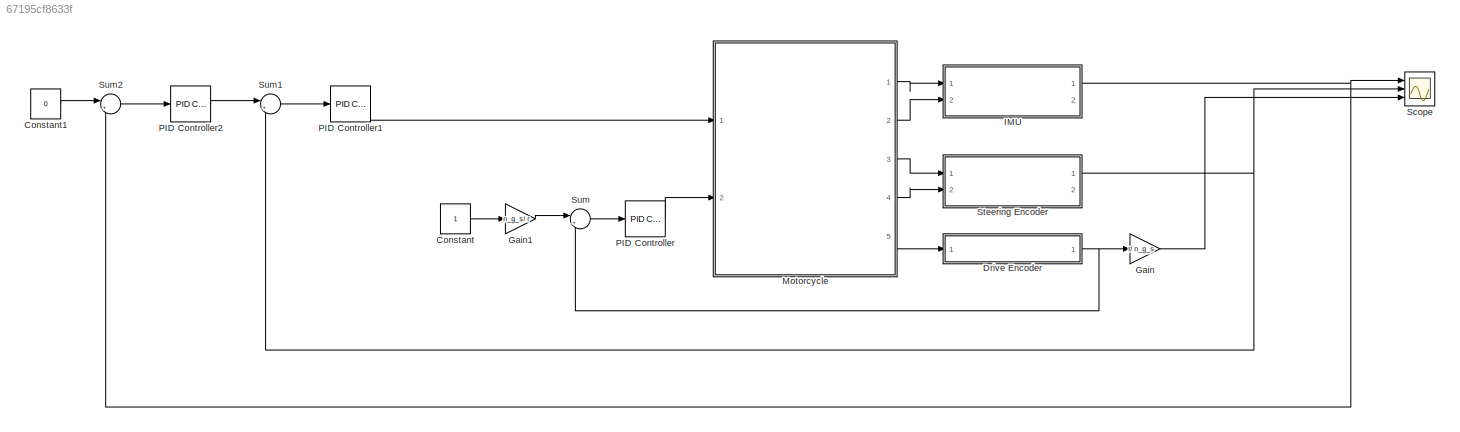
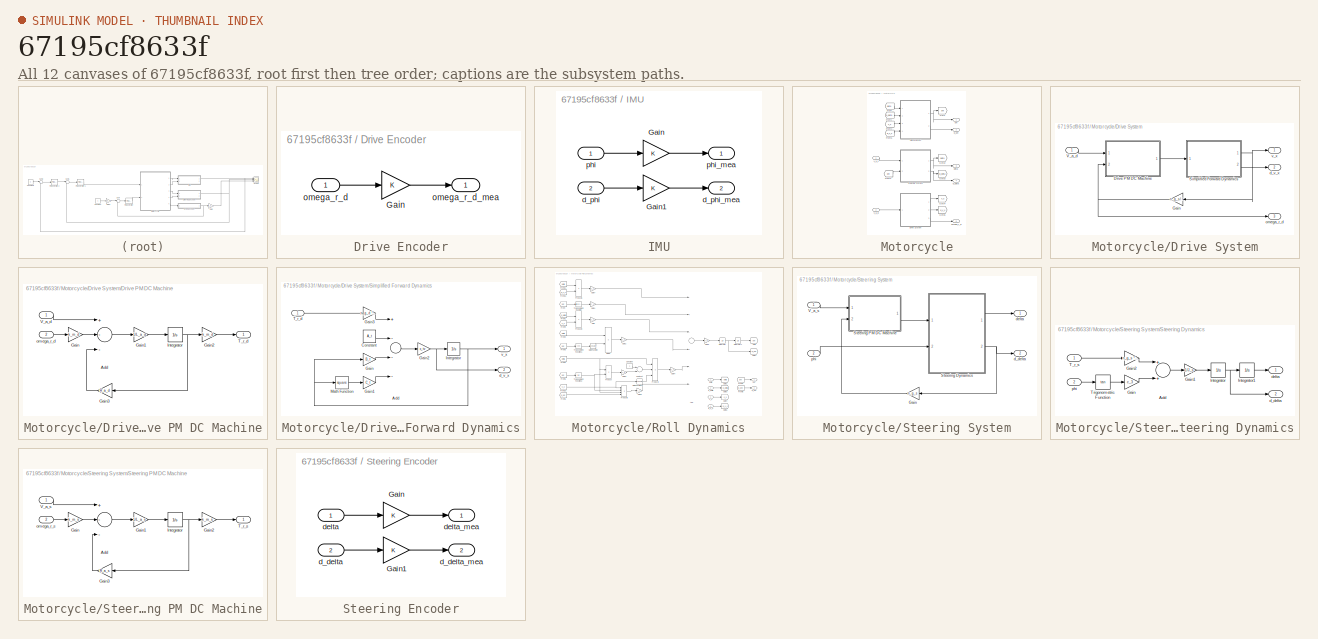
[diagram: thumbnail index - all 12 canvases of the model, root first then tree order]
MODEL slx_67195cf8633f
KIND model
CONFIG AbsTol = auto
CONFIG EnableMultiTasking = off
CONFIG FixedStep = auto
CONFIG MaxStep = auto
CONFIG MinStep = auto
CONFIG RelTol = 1e-3
CONFIG SampleTimeConstraint = Unconstrained
CONFIG Solver = VariableStepAuto
CONFIG SolverName = VariableStepAuto
CONFIG StartTime = 0.0
CONFIG StopTime = 10.0
BLOCK [Constant] Constant
BLOCK [Constant] Constant1
  Value = 0
BLOCK [SubSystem] Drive Encoder
  Ports = [1, 1]
  RequestExecContextInheritance = off
BLOCK [Gain] Drive Encoder/Gain
  OutDataTypeStr = Inherit: Inherit via internal rule
  ParamDataTypeStr = Inherit: Inherit via internal rule
  SaturateOnIntegerOverflow = off
BLOCK [Inport] Drive Encoder/omega_r_d
  IconDisplay = Port number
BLOCK [Outport] Drive Encoder/omega_r_d_mea
  IconDisplay = Port number
  VectorParamsAs1DForOutWhenUnconnected = off
BLOCK [Gain] Gain
  AttributesFormatString = %<Gain>
  Gain = r/ n_g_s
  OutDataTypeStr = Inherit: Inherit via internal rule
  ParamDataTypeStr = Inherit: Inherit via internal rule
  SaturateOnIntegerOverflow = off
BLOCK [Gain] Gain1
  AttributesFormatString = %<Gain>
  Gain = n_g_s/ r
  OutDataTypeStr = Inherit: Inherit via internal rule
  ParamDataTypeStr = Inherit: Inherit via internal rule
  SaturateOnIntegerOverflow = off
BLOCK [SubSystem] IMU
  Ports = [2, 2]
  RequestExecContextInheritance = off
BLOCK [Gain] IMU/Gain
  OutDataTypeStr = Inherit: Inherit via internal rule
  ParamDataTypeStr = Inherit: Inherit via internal rule
  SaturateOnIntegerOverflow = off
BLOCK [Gain] IMU/Gain1
  OutDataTypeStr = Inherit: Inherit via internal rule
  ParamDataTypeStr = Inherit: Inherit via internal rule
  SaturateOnIntegerOverflow = off
BLOCK [Inport] IMU/d_phi
  IconDisplay = Port number
  Port = 2
BLOCK [Outport] IMU/d_phi_mea
  IconDisplay = Port number
  Port = 2
  VectorParamsAs1DForOutWhenUnconnected = off
BLOCK [Inport] IMU/phi
  IconDisplay = Port number
BLOCK [Outport] IMU/phi_mea
  IconDisplay = Port number
  VectorParamsAs1DForOutWhenUnconnected = off
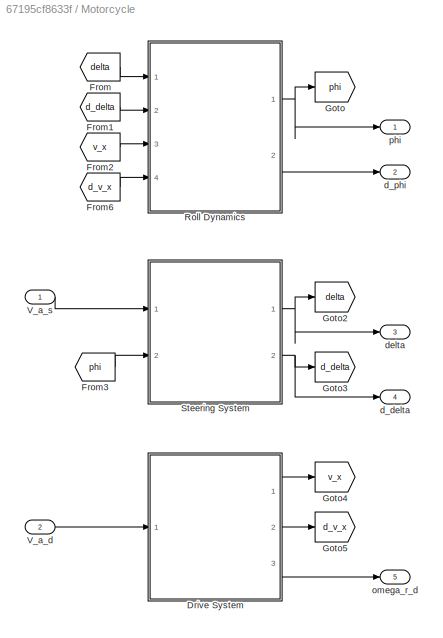
BLOCK [SubSystem] Motorcycle
  Ports = [2, 5]
  RequestExecContextInheritance = off
BLOCK [SubSystem] Motorcycle/Drive System
  Ports = [1, 3]
  RequestExecContextInheritance = off
BLOCK [SubSystem] Motorcycle/Drive System/Drive PM DC Machine
  Ports = [2, 1]
  RequestExecContextInheritance = off
BLOCK [Sum] Motorcycle/Drive System/Drive PM DC Machine/Add
  InputSameDT = off
  Inputs = +--
  OutDataTypeStr = Inherit: Inherit via internal rule
  Ports = [3, 1]
  SaturateOnIntegerOverflow = off
BLOCK [Gain] Motorcycle/Drive System/Drive PM DC Machine/Gain
  AttributesFormatString = %<Gain>
  Gain = k_m_d
  OutDataTypeStr = Inherit: Inherit via internal rule
  ParamDataTypeStr = Inherit: Inherit via internal rule
  SaturateOnIntegerOverflow = off
BLOCK [Gain] Motorcycle/Drive System/Drive PM DC Machine/Gain1
  AttributesFormatString = %<Gain>
  Gain = 1/L_a_d
  OutDataTypeStr = Inherit: Inherit via internal rule
  ParamDataTypeStr = Inherit: Inherit via internal rule
  SaturateOnIntegerOverflow = off
BLOCK [Gain] Motorcycle/Drive System/Drive PM DC Machine/Gain2
  AttributesFormatString = %<Gain>
  Gain = k_m_d
  OutDataTypeStr = Inherit: Inherit via internal rule
  ParamDataTypeStr = Inherit: Inherit via internal rule
  SaturateOnIntegerOverflow = off
BLOCK [Gain] Motorcycle/Drive System/Drive PM DC Machine/Gain3
  AttributesFormatString = %<Gain>
  Gain = R_a_d
  OutDataTypeStr = Inherit: Inherit via internal rule
  ParamDataTypeStr = Inherit: Inherit via internal rule
  SaturateOnIntegerOverflow = off
BLOCK [Integrator] Motorcycle/Drive System/Drive PM DC Machine/Integrator
  Ports = [1, 1]
BLOCK [Outport] Motorcycle/Drive System/Drive PM DC Machine/T_r_d
  IconDisplay = Port number
  VectorParamsAs1DForOutWhenUnconnected = off
BLOCK [Inport] Motorcycle/Drive System/Drive PM DC Machine/V_a_d
  IconDisplay = Port number
BLOCK [Inport] Motorcycle/Drive System/Drive PM DC Machine/omega_r_d
  IconDisplay = Port number
  Port = 2
BLOCK [Gain] Motorcycle/Drive System/Gain
  AttributesFormatString = %<Gain>
  Gain = n_g_s/ r
  OutDataTypeStr = Inherit: Inherit via internal rule
  ParamDataTypeStr = Inherit: Inherit via internal rule
  SaturateOnIntegerOverflow = off
BLOCK [SubSystem] Motorcycle/Drive System/Simplified Forward Dynamics
  Ports = [1, 2]
  RequestExecContextInheritance = off
BLOCK [Sum] Motorcycle/Drive System/Simplified Forward Dynamics/Add
  InputSameDT = off
  Inputs = +---
  OutDataTypeStr = Inherit: Inherit via internal rule
  Ports = [4, 1]
  SaturateOnIntegerOverflow = off
BLOCK [Constant] Motorcycle/Drive System/Simplified Forward Dynamics/Constant
  Value = A_t
BLOCK [Gain] Motorcycle/Drive System/Simplified Forward Dynamics/Gain
  Gain = B_t
  OutDataTypeStr = Inherit: Inherit via internal rule
  ParamDataTypeStr = Inherit: Inherit via internal rule
  SaturateOnIntegerOverflow = off
BLOCK [Gain] Motorcycle/Drive System/Simplified Forward Dynamics/Gain1
  Gain = C_t
  OutDataTypeStr = Inherit: Inherit via internal rule
  ParamDataTypeStr = Inherit: Inherit via internal rule
  SaturateOnIntegerOverflow = off
BLOCK [Gain] Motorcycle/Drive System/Simplified Forward Dynamics/Gain2
  Gain = c_tv
  OutDataTypeStr = Inherit: Inherit via internal rule
  ParamDataTypeStr = Inherit: Inherit via internal rule
  SaturateOnIntegerOverflow = off
BLOCK [Gain] Motorcycle/Drive System/Simplified Forward Dynamics/Gain3
  AttributesFormatString = %<Gain>
  Gain = n_g_d * eta_g_d
  OutDataTypeStr = Inherit: Inherit via internal rule
  ParamDataTypeStr = Inherit: Inherit via internal rule
  SaturateOnIntegerOverflow = off
BLOCK [Integrator] Motorcycle/Drive System/Simplified Forward Dynamics/Integrator
  Ports = [1, 1]
BLOCK [Math] Motorcycle/Drive System/Simplified Forward Dynamics/Math Function
  Operator = square
  Ports = [1, 1]
BLOCK [Inport] Motorcycle/Drive System/Simplified Forward Dynamics/T_r_d
  IconDisplay = Port number
BLOCK [Outport] Motorcycle/Drive System/Simplified Forward Dynamics/d_v_x
  IconDisplay = Port number
  Port = 2
  VectorParamsAs1DForOutWhenUnconnected = off
BLOCK [Outport] Motorcycle/Drive System/Simplified Forward Dynamics/v_x
  IconDisplay = Port number
  VectorParamsAs1DForOutWhenUnconnected = off
BLOCK [Inport] Motorcycle/Drive System/V_a_d
  IconDisplay = Port number
BLOCK [Outport] Motorcycle/Drive System/d_v_x
  IconDisplay = Port number
  Port = 2
  VectorParamsAs1DForOutWhenUnconnected = off
BLOCK [Outport] Motorcycle/Drive System/omega_r_d
  IconDisplay = Port number
  Port = 3
  VectorParamsAs1DForOutWhenUnconnected = off
BLOCK [Outport] Motorcycle/Drive System/v_x
  IconDisplay = Port number
  VectorParamsAs1DForOutWhenUnconnected = off
BLOCK [From] Motorcycle/From
  GotoTag = delta
BLOCK [From] Motorcycle/From1
  GotoTag = d_delta
BLOCK [From] Motorcycle/From2
  GotoTag = v_x
BLOCK [From] Motorcycle/From3
  GotoTag = phi
BLOCK [From] Motorcycle/From6
  GotoTag = d_v_x
BLOCK [Goto] Motorcycle/Goto
  GotoTag = phi
BLOCK [Goto] Motorcycle/Goto2
  GotoTag = delta
BLOCK [Goto] Motorcycle/Goto3
  GotoTag = d_delta
BLOCK [Goto] Motorcycle/Goto4
  GotoTag = v_x
BLOCK [Goto] Motorcycle/Goto5
  GotoTag = d_v_x
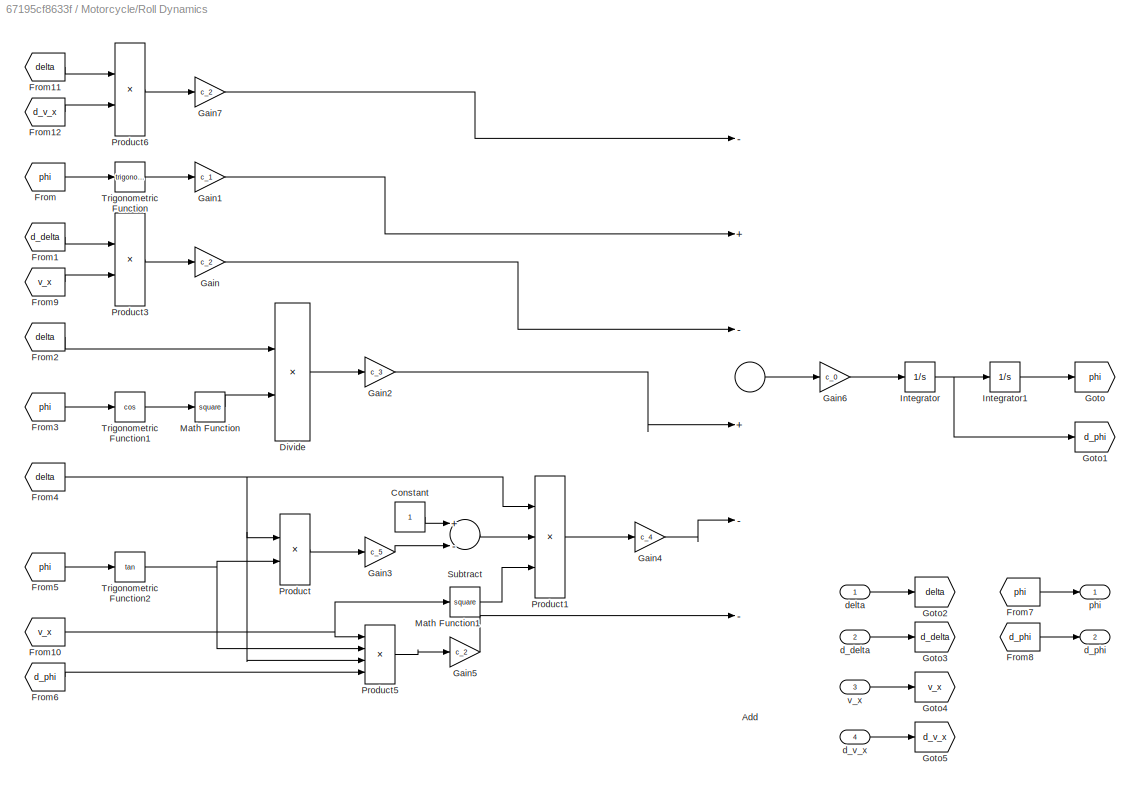
BLOCK [SubSystem] Motorcycle/Roll Dynamics
  Ports = [4, 2]
  RequestExecContextInheritance = off
BLOCK [Sum] Motorcycle/Roll Dynamics/Add
  InputSameDT = off
  Inputs = -+-+--
  OutDataTypeStr = Inherit: Inherit via internal rule
  Ports = [6, 1]
  SaturateOnIntegerOverflow = off
BLOCK [Constant] Motorcycle/Roll Dynamics/Constant
BLOCK [Product] Motorcycle/Roll Dynamics/Divide
  InputSameDT = off
  Inputs = */
  OutDataTypeStr = Inherit: Inherit via internal rule
  Ports = [2, 1]
  RndMeth = Floor
  SaturateOnIntegerOverflow = off
BLOCK [From] Motorcycle/Roll Dynamics/From
  GotoTag = phi
BLOCK [From] Motorcycle/Roll Dynamics/From1
  GotoTag = d_delta
BLOCK [From] Motorcycle/Roll Dynamics/From10
  GotoTag = v_x
BLOCK [From] Motorcycle/Roll Dynamics/From11
  GotoTag = delta
BLOCK [From] Motorcycle/Roll Dynamics/From12
  GotoTag = d_v_x
BLOCK [From] Motorcycle/Roll Dynamics/From2
  GotoTag = delta
BLOCK [From] Motorcycle/Roll Dynamics/From3
  GotoTag = phi
BLOCK [From] Motorcycle/Roll Dynamics/From4
  GotoTag = delta
BLOCK [From] Motorcycle/Roll Dynamics/From5
  GotoTag = phi
BLOCK [From] Motorcycle/Roll Dynamics/From6
  GotoTag = d_phi
BLOCK [From] Motorcycle/Roll Dynamics/From7
  GotoTag = phi
BLOCK [From] Motorcycle/Roll Dynamics/From8
  GotoTag = d_phi
BLOCK [From] Motorcycle/Roll Dynamics/From9
  GotoTag = v_x
BLOCK [Gain] Motorcycle/Roll Dynamics/Gain
  Gain = c_2
  OutDataTypeStr = Inherit: Inherit via internal rule
  ParamDataTypeStr = Inherit: Inherit via internal rule
  SaturateOnIntegerOverflow = off
BLOCK [Gain] Motorcycle/Roll Dynamics/Gain1
  Gain = c_1
  OutDataTypeStr = Inherit: Inherit via internal rule
  ParamDataTypeStr = Inherit: Inherit via internal rule
  SaturateOnIntegerOverflow = off
BLOCK [Gain] Motorcycle/Roll Dynamics/Gain2
  Gain = c_3
  OutDataTypeStr = Inherit: Inherit via internal rule
  ParamDataTypeStr = Inherit: Inherit via internal rule
  SaturateOnIntegerOverflow = off
BLOCK [Gain] Motorcycle/Roll Dynamics/Gain3
  Gain = c_5
  OutDataTypeStr = Inherit: Inherit via internal rule
  ParamDataTypeStr = Inherit: Inherit via internal rule
  SaturateOnIntegerOverflow = off
BLOCK [Gain] Motorcycle/Roll Dynamics/Gain4
  Gain = c_4
  OutDataTypeStr = Inherit: Inherit via internal rule
  ParamDataTypeStr = Inherit: Inherit via internal rule
  SaturateOnIntegerOverflow = off
BLOCK [Gain] Motorcycle/Roll Dynamics/Gain5
  Gain = c_2
  OutDataTypeStr = Inherit: Inherit via internal rule
  ParamDataTypeStr = Inherit: Inherit via internal rule
  SaturateOnIntegerOverflow = off
BLOCK [Gain] Motorcycle/Roll Dynamics/Gain6
  Gain = c_0
  OutDataTypeStr = Inherit: Inherit via internal rule
  ParamDataTypeStr = Inherit: Inherit via internal rule
  SaturateOnIntegerOverflow = off
BLOCK [Gain] Motorcycle/Roll Dynamics/Gain7
  Gain = c_2
  OutDataTypeStr = Inherit: Inherit via internal rule
  ParamDataTypeStr = Inherit: Inherit via internal rule
  SaturateOnIntegerOverflow = off
BLOCK [Goto] Motorcycle/Roll Dynamics/Goto
  GotoTag = phi
BLOCK [Goto] Motorcycle/Roll Dynamics/Goto1
  GotoTag = d_phi
BLOCK [Goto] Motorcycle/Roll Dynamics/Goto2
  GotoTag = delta
BLOCK [Goto] Motorcycle/Roll Dynamics/Goto3
  GotoTag = d_delta
BLOCK [Goto] Motorcycle/Roll Dynamics/Goto4
  GotoTag = v_x
BLOCK [Goto] Motorcycle/Roll Dynamics/Goto5
  GotoTag = d_v_x
BLOCK [Integrator] Motorcycle/Roll Dynamics/Integrator
  Ports = [1, 1]
BLOCK [Integrator] Motorcycle/Roll Dynamics/Integrator1
  InitialCondition = phi_0
  Ports = [1, 1]
BLOCK [Math] Motorcycle/Roll Dynamics/Math Function
  Operator = square
  Ports = [1, 1]
BLOCK [Math] Motorcycle/Roll Dynamics/Math Function1
  Operator = square
  Ports = [1, 1]
BLOCK [Product] Motorcycle/Roll Dynamics/Product
  InputSameDT = off
  OutDataTypeStr = Inherit: Inherit via internal rule
  Ports = [2, 1]
  RndMeth = Floor
  SaturateOnIntegerOverflow = off
BLOCK [Product] Motorcycle/Roll Dynamics/Product1
  InputSameDT = off
  Inputs = 3
  OutDataTypeStr = Inherit: Inherit via internal rule
  Ports = [3, 1]
  RndMeth = Floor
  SaturateOnIntegerOverflow = off
BLOCK [Product] Motorcycle/Roll Dynamics/Product3
  InputSameDT = off
  OutDataTypeStr = Inherit: Inherit via internal rule
  Ports = [2, 1]
  RndMeth = Floor
  SaturateOnIntegerOverflow = off
BLOCK [Product] Motorcycle/Roll Dynamics/Product5
  InputSameDT = off
  Inputs = 4
  OutDataTypeStr = Inherit: Inherit via internal rule
  Ports = [4, 1]
  RndMeth = Floor
  SaturateOnIntegerOverflow = off
BLOCK [Product] Motorcycle/Roll Dynamics/Product6
  InputSameDT = off
  OutDataTypeStr = Inherit: Inherit via internal rule
  Ports = [2, 1]
  RndMeth = Floor
  SaturateOnIntegerOverflow = off
BLOCK [Sum] Motorcycle/Roll Dynamics/Subtract
  InputSameDT = off
  Inputs = +-
  OutDataTypeStr = Inherit: Inherit via internal rule
  Ports = [2, 1]
  SaturateOnIntegerOverflow = off
BLOCK [Trigonometry] Motorcycle/Roll Dynamics/Trigonometric Function
  Ports = [1, 1]
BLOCK [Trigonometry] Motorcycle/Roll Dynamics/Trigonometric Function1
  Operator = cos
  Ports = [1, 1]
BLOCK [Trigonometry] Motorcycle/Roll Dynamics/Trigonometric Function2
  Operator = tan
  Ports = [1, 1]
BLOCK [Inport] Motorcycle/Roll Dynamics/d_delta
  IconDisplay = Port number
  Port = 2
BLOCK [Outport] Motorcycle/Roll Dynamics/d_phi
  IconDisplay = Port number
  Port = 2
  VectorParamsAs1DForOutWhenUnconnected = off
BLOCK [Inport] Motorcycle/Roll Dynamics/d_v_x
  IconDisplay = Port number
  Port = 4
BLOCK [Inport] Motorcycle/Roll Dynamics/delta
  IconDisplay = Port number
BLOCK [Outport] Motorcycle/Roll Dynamics/phi
  IconDisplay = Port number
  VectorParamsAs1DForOutWhenUnconnected = off
BLOCK [Inport] Motorcycle/Roll Dynamics/v_x
  IconDisplay = Port number
  Port = 3
BLOCK [SubSystem] Motorcycle/Steering System
  Ports = [2, 2]
  RequestExecContextInheritance = off
BLOCK [Gain] Motorcycle/Steering System/Gain
  AttributesFormatString = %<Gain>
  Gain = n_g_s
  OutDataTypeStr = Inherit: Inherit via internal rule
  ParamDataTypeStr = Inherit: Inherit via internal rule
  SaturateOnIntegerOverflow = off
BLOCK [SubSystem] Motorcycle/Steering System/Steering Dynamics
  Ports = [2, 2]
  RequestExecContextInheritance = off
BLOCK [Sum] Motorcycle/Steering System/Steering Dynamics/Add
  InputSameDT = off
  OutDataTypeStr = Inherit: Inherit via internal rule
  Ports = [2, 1]
  SaturateOnIntegerOverflow = off
BLOCK [Gain] Motorcycle/Steering System/Steering Dynamics/Gain
  Gain = c_3
  OutDataTypeStr = Inherit: Inherit via internal rule
  ParamDataTypeStr = Inherit: Inherit via internal rule
  SaturateOnIntegerOverflow = off
BLOCK [Gain] Motorcycle/Steering System/Steering Dynamics/Gain1
  AttributesFormatString = %<Gain>
  Gain = 1/J_s
  OutDataTypeStr = Inherit: Inherit via internal rule
  ParamDataTypeStr = Inherit: Inherit via internal rule
  SaturateOnIntegerOverflow = off
BLOCK [Gain] Motorcycle/Steering System/Steering Dynamics/Gain2
  AttributesFormatString = %<Gain>
  Gain = n_g_s * eta_g_s
  OutDataTypeStr = Inherit: Inherit via internal rule
  ParamDataTypeStr = Inherit: Inherit via internal rule
  SaturateOnIntegerOverflow = off
BLOCK [Integrator] Motorcycle/Steering System/Steering Dynamics/Integrator
  Ports = [1, 1]
BLOCK [Integrator] Motorcycle/Steering System/Steering Dynamics/Integrator1
  Ports = [1, 1]
BLOCK [Inport] Motorcycle/Steering System/Steering Dynamics/T_r_s
  IconDisplay = Port number
BLOCK [Trigonometry] Motorcycle/Steering System/Steering Dynamics/Trigonometric Function
  Operator = tan
  Ports = [1, 1]
BLOCK [Outport] Motorcycle/Steering System/Steering Dynamics/d_delta
  IconDisplay = Port number
  Port = 2
  VectorParamsAs1DForOutWhenUnconnected = off
BLOCK [Outport] Motorcycle/Steering System/Steering Dynamics/delta
  IconDisplay = Port number
  VectorParamsAs1DForOutWhenUnconnected = off
BLOCK [Inport] Motorcycle/Steering System/Steering Dynamics/phi
  IconDisplay = Port number
  Port = 2
BLOCK [SubSystem] Motorcycle/Steering System/Steering PM DC Machine
  Ports = [2, 1]
  RequestExecContextInheritance = off
BLOCK [Sum] Motorcycle/Steering System/Steering PM DC Machine/Add
  InputSameDT = off
  Inputs = +--
  OutDataTypeStr = Inherit: Inherit via internal rule
  Ports = [3, 1]
  SaturateOnIntegerOverflow = off
BLOCK [Gain] Motorcycle/Steering System/Steering PM DC Machine/Gain
  AttributesFormatString = %<Gain>
  Gain = k_m_s
  OutDataTypeStr = Inherit: Inherit via internal rule
  ParamDataTypeStr = Inherit: Inherit via internal rule
  SaturateOnIntegerOverflow = off
BLOCK [Gain] Motorcycle/Steering System/Steering PM DC Machine/Gain1
  AttributesFormatString = %<Gain>
  Gain = 1/L_a_s
  OutDataTypeStr = Inherit: Inherit via internal rule
  ParamDataTypeStr = Inherit: Inherit via internal rule
  SaturateOnIntegerOverflow = off
BLOCK [Gain] Motorcycle/Steering System/Steering PM DC Machine/Gain2
  AttributesFormatString = %<Gain>
  Gain = k_m_s
  OutDataTypeStr = Inherit: Inherit via internal rule
  ParamDataTypeStr = Inherit: Inherit via internal rule
  SaturateOnIntegerOverflow = off
BLOCK [Gain] Motorcycle/Steering System/Steering PM DC Machine/Gain3
  AttributesFormatString = %<Gain>
  Gain = R_a_s
  OutDataTypeStr = Inherit: Inherit via internal rule
  ParamDataTypeStr = Inherit: Inherit via internal rule
  SaturateOnIntegerOverflow = off
BLOCK [Integrator] Motorcycle/Steering System/Steering PM DC Machine/Integrator
  Ports = [1, 1]
BLOCK [Outport] Motorcycle/Steering System/Steering PM DC Machine/T_r_s
  IconDisplay = Port number
  VectorParamsAs1DForOutWhenUnconnected = off
BLOCK [Inport] Motorcycle/Steering System/Steering PM DC Machine/V_a_s
  IconDisplay = Port number
BLOCK [Inport] Motorcycle/Steering System/Steering PM DC Machine/omega_r_s
  IconDisplay = Port number
  Port = 2
BLOCK [Inport] Motorcycle/Steering System/V_a_s
  IconDisplay = Port number
BLOCK [Outport] Motorcycle/Steering System/d_delta
  IconDisplay = Port number
  Port = 2
  VectorParamsAs1DForOutWhenUnconnected = off
BLOCK [Outport] Motorcycle/Steering System/delta
  IconDisplay = Port number
  VectorParamsAs1DForOutWhenUnconnected = off
BLOCK [Inport] Motorcycle/Steering System/phi
  IconDisplay = Port number
  Port = 2
BLOCK [Inport] Motorcycle/V_a_d
  IconDisplay = Port number
  Port = 2
BLOCK [Inport] Motorcycle/V_a_s
  IconDisplay = Port number
BLOCK [Outport] Motorcycle/d_delta
  IconDisplay = Port number
  Port = 4
  VectorParamsAs1DForOutWhenUnconnected = off
BLOCK [Outport] Motorcycle/d_phi
  IconDisplay = Port number
  Port = 2
  VectorParamsAs1DForOutWhenUnconnected = off
BLOCK [Outport] Motorcycle/delta
  IconDisplay = Port number
  Port = 3
  VectorParamsAs1DForOutWhenUnconnected = off
BLOCK [Outport] Motorcycle/omega_r_d
  IconDisplay = Port number
  Port = 5
  VectorParamsAs1DForOutWhenUnconnected = off
BLOCK [Outport] Motorcycle/phi
  IconDisplay = Port number
  VectorParamsAs1DForOutWhenUnconnected = off
BLOCK [Reference] PID Controller  REF=simulink/Continuous/PID Controller
  Ports = [1, 1]
  SourceBlock = simulink/Continuous/PID Controller
  SourceProductBaseCode = SL
  SourceProductName = Simulink
  SourceType = PID 1dof
BLOCK [Reference] PID Controller1  REF=simulink/Continuous/PID Controller
  Ports = [1, 1]
  SourceBlock = simulink/Continuous/PID Controller
  SourceProductBaseCode = SL
  SourceProductName = Simulink
  SourceType = PID 1dof
BLOCK [Reference] PID Controller2  REF=simulink/Continuous/PID Controller
  Ports = [1, 1]
  SourceBlock = simulink/Continuous/PID Controller
  SourceProductBaseCode = SL
  SourceProductName = Simulink
  SourceType = PID 1dof
BLOCK [Scope] Scope
  Floating = off
  NumInputPorts = 3
  Ports = [3]
  ScopeSpecificationString = Simulink.scopes.TimeScopeBlockCfg('CurrentConfiguration', extmgr.ConfigurationSet(extmgr.Configuration('Core','General UI',true),extmgr.Configuration('Core','Source UI',true),extmgr.Configuration('Sources','WiredSimulink',true),extmgr.Configuration('Visuals','Time Domain',true,'SerializedDisplays',{struct('MinYLimReal','-37119213.47164','MaxYLimReal','313659233.46345','YLabelReal','','MinYLimMag',...<+2787ch>
BLOCK [SubSystem] Steering Encoder
  Ports = [2, 2]
  RequestExecContextInheritance = off
BLOCK [Gain] Steering Encoder/Gain
  OutDataTypeStr = Inherit: Inherit via internal rule
  ParamDataTypeStr = Inherit: Inherit via internal rule
  SaturateOnIntegerOverflow = off
BLOCK [Gain] Steering Encoder/Gain1
  OutDataTypeStr = Inherit: Inherit via internal rule
  ParamDataTypeStr = Inherit: Inherit via internal rule
  SaturateOnIntegerOverflow = off
BLOCK [Inport] Steering Encoder/d_delta
  IconDisplay = Port number
  Port = 2
BLOCK [Outport] Steering Encoder/d_delta_mea
  IconDisplay = Port number
  Port = 2
  VectorParamsAs1DForOutWhenUnconnected = off
BLOCK [Inport] Steering Encoder/delta
  IconDisplay = Port number
BLOCK [Outport] Steering Encoder/delta_mea
  IconDisplay = Port number
  VectorParamsAs1DForOutWhenUnconnected = off
BLOCK [Sum] Sum
  IconShape = round
  InputSameDT = off
  Inputs = |+-
  OutDataTypeStr = Inherit: Inherit via internal rule
  Ports = [2, 1]
  SaturateOnIntegerOverflow = off
BLOCK [Sum] Sum1
  IconShape = round
  InputSameDT = off
  Inputs = |+-
  OutDataTypeStr = Inherit: Inherit via internal rule
  Ports = [2, 1]
  SaturateOnIntegerOverflow = off
BLOCK [Sum] Sum2
  IconShape = round
  InputSameDT = off
  Inputs = |++
  OutDataTypeStr = Inherit: Inherit via internal rule
  Ports = [2, 1]
  SaturateOnIntegerOverflow = off
LINE Constant1:1 -> Sum2:1
LINE Constant:1 -> Gain1:1
LINE Drive Encoder/Gain:1 -> Drive Encoder/omega_r_d_mea:1
LINE Drive Encoder/omega_r_d:1 -> Drive Encoder/Gain:1
NET Drive Encoder:1 -> Gain:1, Sum:2
LINE Gain1:1 -> Sum:1
LINE Gain:1 -> Scope:3
LINE IMU/Gain1:1 -> IMU/d_phi_mea:1
LINE IMU/Gain:1 -> IMU/phi_mea:1
LINE IMU/d_phi:1 -> IMU/Gain1:1
LINE IMU/phi:1 -> IMU/Gain:1
NET IMU:1 -> Scope:1, Sum2:2
LINE Motorcycle/Drive System/Drive PM DC Machine/Add:1 -> Motorcycle/Drive System/Drive PM DC Machine/Gain1:1
LINE Motorcycle/Drive System/Drive PM DC Machine/Gain1:1 -> Motorcycle/Drive System/Drive PM DC Machine/Integrator:1
LINE Motorcycle/Drive System/Drive PM DC Machine/Gain2:1 -> Motorcycle/Drive System/Drive PM DC Machine/T_r_d:1
LINE Motorcycle/Drive System/Drive PM DC Machine/Gain3:1 -> Motorcycle/Drive System/Drive PM DC Machine/Add:3
LINE Motorcycle/Drive System/Drive PM DC Machine/Gain:1 -> Motorcycle/Drive System/Drive PM DC Machine/Add:2
NET Motorcycle/Drive System/Drive PM DC Machine/Integrator:1 -> Motorcycle/Drive System/Drive PM DC Machine/Gain2:1, Motorcycle/Drive System/Drive PM DC Machine/Gain3:1
LINE Motorcycle/Drive System/Drive PM DC Machine/V_a_d:1 -> Motorcycle/Drive System/Drive PM DC Machine/Add:1
LINE Motorcycle/Drive System/Drive PM DC Machine/omega_r_d:1 -> Motorcycle/Drive System/Drive PM DC Machine/Gain:1
LINE Motorcycle/Drive System/Drive PM DC Machine:1 -> Motorcycle/Drive System/Simplified Forward Dynamics:1
NET Motorcycle/Drive System/Gain:1 -> Motorcycle/Drive System/Drive PM DC Machine:2, Motorcycle/Drive System/omega_r_d:1
LINE Motorcycle/Drive System/Simplified Forward Dynamics/Add:1 -> Motorcycle/Drive System/Simplified Forward Dynamics/Gain2:1
LINE Motorcycle/Drive System/Simplified Forward Dynamics/Constant:1 -> Motorcycle/Drive System/Simplified Forward Dynamics/Add:2
LINE Motorcycle/Drive System/Simplified Forward Dynamics/Gain1:1 -> Motorcycle/Drive System/Simplified Forward Dynamics/Add:4
NET Motorcycle/Drive System/Simplified Forward Dynamics/Gain2:1 -> Motorcycle/Drive System/Simplified Forward Dynamics/Integrator:1, Motorcycle/Drive System/Simplified Forward Dynamics/d_v_x:1
LINE Motorcycle/Drive System/Simplified Forward Dynamics/Gain3:1 -> Motorcycle/Drive System/Simplified Forward Dynamics/Add:1
LINE Motorcycle/Drive System/Simplified Forward Dynamics/Gain:1 -> Motorcycle/Drive System/Simplified Forward Dynamics/Add:3
NET Motorcycle/Drive System/Simplified Forward Dynamics/Integrator:1 -> Motorcycle/Drive System/Simplified Forward Dynamics/Gain:1, Motorcycle/Drive System/Simplified Forward Dynamics/Math Function:1, Motorcycle/Drive System/Simplified Forward Dynamics/v_x:1
LINE Motorcycle/Drive System/Simplified Forward Dynamics/Math Function:1 -> Motorcycle/Drive System/Simplified Forward Dynamics/Gain1:1
LINE Motorcycle/Drive System/Simplified Forward Dynamics/T_r_d:1 -> Motorcycle/Drive System/Simplified Forward Dynamics/Gain3:1
NET Motorcycle/Drive System/Simplified Forward Dynamics:1 -> Motorcycle/Drive System/Gain:1, Motorcycle/Drive System/v_x:1
LINE Motorcycle/Drive System/Simplified Forward Dynamics:2 -> Motorcycle/Drive System/d_v_x:1
LINE Motorcycle/Drive System/V_a_d:1 -> Motorcycle/Drive System/Drive PM DC Machine:1
LINE Motorcycle/Drive System:1 -> Motorcycle/Goto4:1
LINE Motorcycle/Drive System:2 -> Motorcycle/Goto5:1
LINE Motorcycle/Drive System:3 -> Motorcycle/omega_r_d:1
LINE Motorcycle/From1:1 -> Motorcycle/Roll Dynamics:2
LINE Motorcycle/From2:1 -> Motorcycle/Roll Dynamics:3
LINE Motorcycle/From3:1 -> Motorcycle/Steering System:2
LINE Motorcycle/From6:1 -> Motorcycle/Roll Dynamics:4
LINE Motorcycle/From:1 -> Motorcycle/Roll Dynamics:1
LINE Motorcycle/Roll Dynamics/Add:1 -> Motorcycle/Roll Dynamics/Gain6:1
LINE Motorcycle/Roll Dynamics/Constant:1 -> Motorcycle/Roll Dynamics/Subtract:1
LINE Motorcycle/Roll Dynamics/Divide:1 -> Motorcycle/Roll Dynamics/Gain2:1
NET Motorcycle/Roll Dynamics/From10:1 -> Motorcycle/Roll Dynamics/Math Function1:1, Motorcycle/Roll Dynamics/Product5:1
LINE Motorcycle/Roll Dynamics/From11:1 -> Motorcycle/Roll Dynamics/Product6:1
LINE Motorcycle/Roll Dynamics/From12:1 -> Motorcycle/Roll Dynamics/Product6:2
LINE Motorcycle/Roll Dynamics/From1:1 -> Motorcycle/Roll Dynamics/Product3:1
LINE Motorcycle/Roll Dynamics/From2:1 -> Motorcycle/Roll Dynamics/Divide:1
LINE Motorcycle/Roll Dynamics/From3:1 -> Motorcycle/Roll Dynamics/Trigonometric Function1:1
NET Motorcycle/Roll Dynamics/From4:1 -> Motorcycle/Roll Dynamics/Product1:1, Motorcycle/Roll Dynamics/Product5:3, Motorcycle/Roll Dynamics/Product:1
LINE Motorcycle/Roll Dynamics/From5:1 -> Motorcycle/Roll Dynamics/Trigonometric Function2:1
LINE Motorcycle/Roll Dynamics/From6:1 -> Motorcycle/Roll Dynamics/Product5:4
LINE Motorcycle/Roll Dynamics/From7:1 -> Motorcycle/Roll Dynamics/phi:1
LINE Motorcycle/Roll Dynamics/From8:1 -> Motorcycle/Roll Dynamics/d_phi:1
LINE Motorcycle/Roll Dynamics/From9:1 -> Motorcycle/Roll Dynamics/Product3:2
LINE Motorcycle/Roll Dynamics/From:1 -> Motorcycle/Roll Dynamics/Trigonometric Function:1
LINE Motorcycle/Roll Dynamics/Gain1:1 -> Motorcycle/Roll Dynamics/Add:2
LINE Motorcycle/Roll Dynamics/Gain2:1 -> Motorcycle/Roll Dynamics/Add:4
LINE Motorcycle/Roll Dynamics/Gain3:1 -> Motorcycle/Roll Dynamics/Subtract:2
LINE Motorcycle/Roll Dynamics/Gain4:1 -> Motorcycle/Roll Dynamics/Add:5
LINE Motorcycle/Roll Dynamics/Gain5:1 -> Motorcycle/Roll Dynamics/Add:6
LINE Motorcycle/Roll Dynamics/Gain6:1 -> Motorcycle/Roll Dynamics/Integrator:1
LINE Motorcycle/Roll Dynamics/Gain7:1 -> Motorcycle/Roll Dynamics/Add:1
LINE Motorcycle/Roll Dynamics/Gain:1 -> Motorcycle/Roll Dynamics/Add:3
LINE Motorcycle/Roll Dynamics/Integrator1:1 -> Motorcycle/Roll Dynamics/Goto:1
NET Motorcycle/Roll Dynamics/Integrator:1 -> Motorcycle/Roll Dynamics/Goto1:1, Motorcycle/Roll Dynamics/Integrator1:1
LINE Motorcycle/Roll Dynamics/Math Function1:1 -> Motorcycle/Roll Dynamics/Product1:3
LINE Motorcycle/Roll Dynamics/Math Function:1 -> Motorcycle/Roll Dynamics/Divide:2
LINE Motorcycle/Roll Dynamics/Product1:1 -> Motorcycle/Roll Dynamics/Gain4:1
LINE Motorcycle/Roll Dynamics/Product3:1 -> Motorcycle/Roll Dynamics/Gain:1
LINE Motorcycle/Roll Dynamics/Product5:1 -> Motorcycle/Roll Dynamics/Gain5:1
LINE Motorcycle/Roll Dynamics/Product6:1 -> Motorcycle/Roll Dynamics/Gain7:1
LINE Motorcycle/Roll Dynamics/Product:1 -> Motorcycle/Roll Dynamics/Gain3:1
LINE Motorcycle/Roll Dynamics/Subtract:1 -> Motorcycle/Roll Dynamics/Product1:2
LINE Motorcycle/Roll Dynamics/Trigonometric Function1:1 -> Motorcycle/Roll Dynamics/Math Function:1
NET Motorcycle/Roll Dynamics/Trigonometric Function2:1 -> Motorcycle/Roll Dynamics/Product5:2, Motorcycle/Roll Dynamics/Product:2
LINE Motorcycle/Roll Dynamics/Trigonometric Function:1 -> Motorcycle/Roll Dynamics/Gain1:1
LINE Motorcycle/Roll Dynamics/d_delta:1 -> Motorcycle/Roll Dynamics/Goto3:1
LINE Motorcycle/Roll Dynamics/d_v_x:1 -> Motorcycle/Roll Dynamics/Goto5:1
LINE Motorcycle/Roll Dynamics/delta:1 -> Motorcycle/Roll Dynamics/Goto2:1
LINE Motorcycle/Roll Dynamics/v_x:1 -> Motorcycle/Roll Dynamics/Goto4:1
NET Motorcycle/Roll Dynamics:1 -> Motorcycle/Goto:1, Motorcycle/phi:1
LINE Motorcycle/Roll Dynamics:2 -> Motorcycle/d_phi:1
LINE Motorcycle/Steering System/Gain:1 -> Motorcycle/Steering System/Steering PM DC Machine:2
LINE Motorcycle/Steering System/Steering Dynamics/Add:1 -> Motorcycle/Steering System/Steering Dynamics/Gain1:1
LINE Motorcycle/Steering System/Steering Dynamics/Gain1:1 -> Motorcycle/Steering System/Steering Dynamics/Integrator:1
LINE Motorcycle/Steering System/Steering Dynamics/Gain2:1 -> Motorcycle/Steering System/Steering Dynamics/Add:1
LINE Motorcycle/Steering System/Steering Dynamics/Gain:1 -> Motorcycle/Steering System/Steering Dynamics/Add:2
LINE Motorcycle/Steering System/Steering Dynamics/Integrator1:1 -> Motorcycle/Steering System/Steering Dynamics/delta:1
NET Motorcycle/Steering System/Steering Dynamics/Integrator:1 -> Motorcycle/Steering System/Steering Dynamics/Integrator1:1, Motorcycle/Steering System/Steering Dynamics/d_delta:1
LINE Motorcycle/Steering System/Steering Dynamics/T_r_s:1 -> Motorcycle/Steering System/Steering Dynamics/Gain2:1
LINE Motorcycle/Steering System/Steering Dynamics/Trigonometric Function:1 -> Motorcycle/Steering System/Steering Dynamics/Gain:1
LINE Motorcycle/Steering System/Steering Dynamics/phi:1 -> Motorcycle/Steering System/Steering Dynamics/Trigonometric Function:1
LINE Motorcycle/Steering System/Steering Dynamics:1 -> Motorcycle/Steering System/delta:1
NET Motorcycle/Steering System/Steering Dynamics:2 -> Motorcycle/Steering System/Gain:1, Motorcycle/Steering System/d_delta:1
LINE Motorcycle/Steering System/Steering PM DC Machine/Add:1 -> Motorcycle/Steering System/Steering PM DC Machine/Gain1:1
LINE Motorcycle/Steering System/Steering PM DC Machine/Gain1:1 -> Motorcycle/Steering System/Steering PM DC Machine/Integrator:1
LINE Motorcycle/Steering System/Steering PM DC Machine/Gain2:1 -> Motorcycle/Steering System/Steering PM DC Machine/T_r_s:1
LINE Motorcycle/Steering System/Steering PM DC Machine/Gain3:1 -> Motorcycle/Steering System/Steering PM DC Machine/Add:3
LINE Motorcycle/Steering System/Steering PM DC Machine/Gain:1 -> Motorcycle/Steering System/Steering PM DC Machine/Add:2
NET Motorcycle/Steering System/Steering PM DC Machine/Integrator:1 -> Motorcycle/Steering System/Steering PM DC Machine/Gain2:1, Motorcycle/Steering System/Steering PM DC Machine/Gain3:1
LINE Motorcycle/Steering System/Steering PM DC Machine/V_a_s:1 -> Motorcycle/Steering System/Steering PM DC Machine/Add:1
LINE Motorcycle/Steering System/Steering PM DC Machine/omega_r_s:1 -> Motorcycle/Steering System/Steering PM DC Machine/Gain:1
LINE Motorcycle/Steering System/Steering PM DC Machine:1 -> Motorcycle/Steering System/Steering Dynamics:1
LINE Motorcycle/Steering System/V_a_s:1 -> Motorcycle/Steering System/Steering PM DC Machine:1
LINE Motorcycle/Steering System/phi:1 -> Motorcycle/Steering System/Steering Dynamics:2
NET Motorcycle/Steering System:1 -> Motorcycle/Goto2:1, Motorcycle/delta:1
NET Motorcycle/Steering System:2 -> Motorcycle/Goto3:1, Motorcycle/d_delta:1
LINE Motorcycle/V_a_d:1 -> Motorcycle/Drive System:1
LINE Motorcycle/V_a_s:1 -> Motorcycle/Steering System:1
LINE Motorcycle:1 -> IMU:1
LINE Motorcycle:2 -> IMU:2
LINE Motorcycle:3 -> Steering Encoder:1
LINE Motorcycle:4 -> Steering Encoder:2
LINE Motorcycle:5 -> Drive Encoder:1
LINE PID Controller1:1 -> Motorcycle:1
LINE PID Controller2:1 -> Sum1:1
LINE PID Controller:1 -> Motorcycle:2
LINE Steering Encoder/Gain1:1 -> Steering Encoder/d_delta_mea:1
LINE Steering Encoder/Gain:1 -> Steering Encoder/delta_mea:1
LINE Steering Encoder/d_delta:1 -> Steering Encoder/Gain1:1
LINE Steering Encoder/delta:1 -> Steering Encoder/Gain:1
NET Steering Encoder:1 -> Scope:2, Sum1:2
LINE Sum1:1 -> PID Controller1:1
LINE Sum2:1 -> PID Controller2:1
LINE Sum:1 -> PID Controller:1
note: NET lines group one-source signal fan-out (src -> all destinations, sorted); 1:1 wires keep LINE
